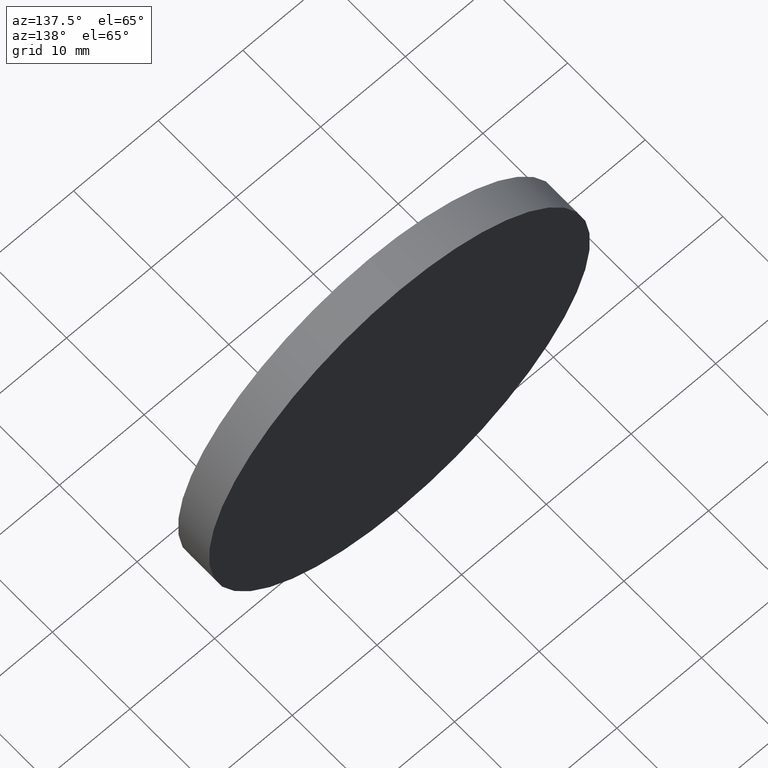
[diagram: clean part render]
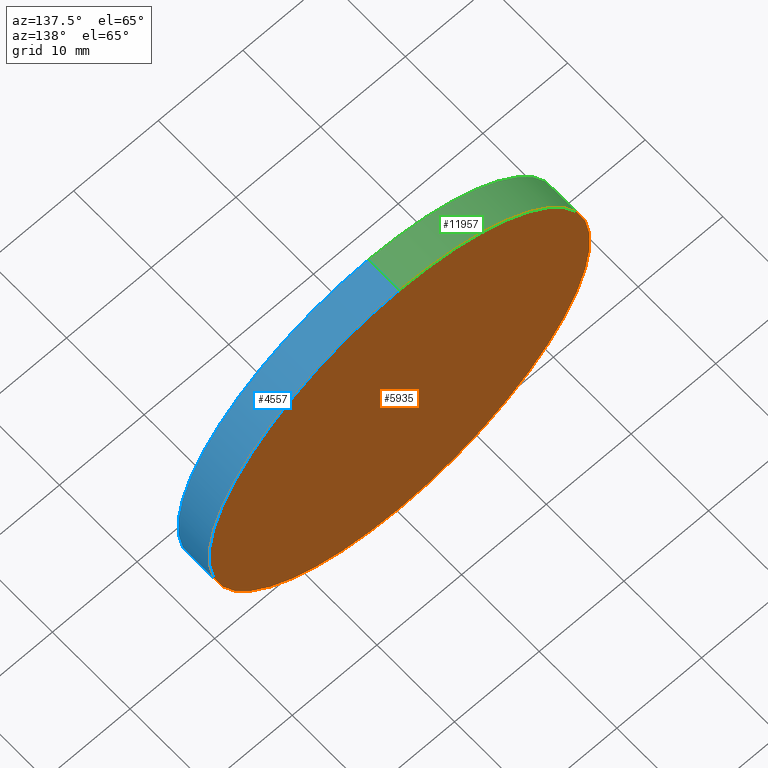
[diagram: same view with three faces highlighted in distinct colors, each labeled with its STEP entity id]
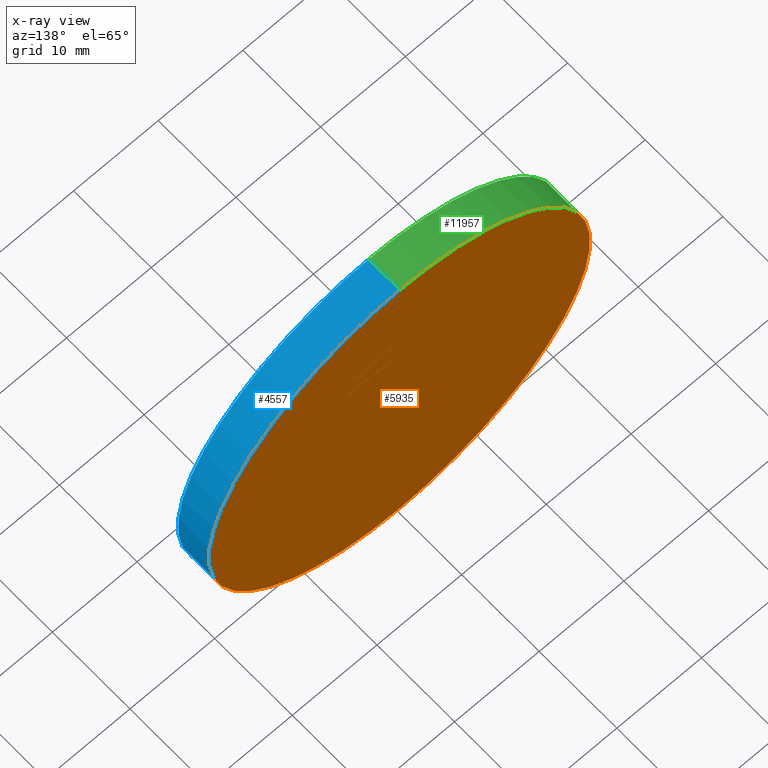
[diagram: x-ray of the same camera — body ghosted, the three highlighted faces saturated]
A machine part, auxiliary view with three faces highlighted in distinct colors.
The next image is the same camera in x-ray (body ghosted, the three faces saturated) — at least one of them is partly hidden behind the body in this view.
Their STEP definitions:

[orange] entity #5935 — the highlighted planar face has unit normal (0, 1, 0).
#1632 = CARTESIAN_POINT ( 'NONE',  ( 0.000000000000000000, 2.000000000000000000, 0.000000000000000000 ) ) ;
#1675 = DIRECTION ( 'NONE',  ( 0.000000000000000000, 0.000000000000000000, 1.000000000000000000 ) ) ;
#1872 = AXIS2_PLACEMENT_3D ( 'NONE', #12766, #10732, #8654 ) ;
#3634 = FACE_OUTER_BOUND ( 'NONE', #10613, .T. ) ;
#4479 = ORIENTED_EDGE ( 'NONE', *, *, #12800, .T. ) ;
#4675 = AXIS2_PLACEMENT_3D ( 'NONE', #5818, #6842, #6753 ) ;
#5818 = CARTESIAN_POINT ( 'NONE',  ( 0.000000000000000000, 2.000000000000000000, 0.000000000000000000 ) ) ;
#5935 = ADVANCED_FACE ( 'NONE', ( #3634 ), #12799, .T. ) ;
#6640 = ORIENTED_EDGE ( 'NONE', *, *, #10128, .T. ) ;
#6726 = CIRCLE ( 'NONE', #9771, 22.50000000000000355 ) ;
#6753 = DIRECTION ( 'NONE',  ( 0.000000000000000000, -0.000000000000000000, 1.000000000000000000 ) ) ;
#6842 = DIRECTION ( 'NONE',  ( 0.000000000000000000, 1.000000000000000000, 0.000000000000000000 ) ) ;
#6894 = VERTEX_POINT ( 'NONE', #8469 ) ;
#8469 = CARTESIAN_POINT ( 'NONE',  ( 2.755455298081545172E-15, 2.000000000000000000, 22.50000000000000355 ) ) ;
#8654 = DIRECTION ( 'NONE',  ( 0.000000000000000000, 0.000000000000000000, 1.000000000000000000 ) ) ;
#9745 = DIRECTION ( 'NONE',  ( 0.000000000000000000, 1.000000000000000000, 0.000000000000000000 ) ) ;
#9771 = AXIS2_PLACEMENT_3D ( 'NONE', #1632, #9745, #1675 ) ;
#10128 = EDGE_CURVE ( 'NONE', #6894, #11755, #6726, .T. ) ;
#10613 = EDGE_LOOP ( 'NONE', ( #4479, #6640 ) ) ;
#10732 = DIRECTION ( 'NONE',  ( 0.000000000000000000, 1.000000000000000000, 0.000000000000000000 ) ) ;
#11755 = VERTEX_POINT ( 'NONE', #12398 ) ;
#12398 = CARTESIAN_POINT ( 'NONE',  ( 0.000000000000000000, 2.000000000000000000, -22.50000000000000355 ) ) ;
#12766 = CARTESIAN_POINT ( 'NONE',  ( 0.000000000000000000, 2.000000000000000000, 0.000000000000000000 ) ) ;
#12799 = PLANE ( 'NONE',  #4675 ) ;
#12800 = EDGE_CURVE ( 'NONE', #11755, #6894, #13018, .T. ) ;
#13018 = CIRCLE ( 'NONE', #1872, 22.50000000000000355 ) ;

[blue] entity #4557 — the highlighted cylindrical surface (partial cylindrical patch) has radius 22.5 mm, axis along (-0, -1, -0).
#343 = EDGE_CURVE ( 'NONE', #6894, #1967, #2129, .T. ) ;
#1030 = DIRECTION ( 'NONE',  ( 0.000000000000000000, 1.000000000000000000, 0.000000000000000000 ) ) ;
#1632 = CARTESIAN_POINT ( 'NONE',  ( 0.000000000000000000, 2.000000000000000000, 0.000000000000000000 ) ) ;
#1675 = DIRECTION ( 'NONE',  ( 0.000000000000000000, 0.000000000000000000, 1.000000000000000000 ) ) ;
#1749 = ORIENTED_EDGE ( 'NONE', *, *, #8189, .F. ) ;
#1967 = VERTEX_POINT ( 'NONE', #9440 ) ;
#2129 = LINE ( 'NONE', #5009, #9815 ) ;
#2864 = EDGE_LOOP ( 'NONE', ( #8420, #2918, #7755, #1749 ) ) ;
#2918 = ORIENTED_EDGE ( 'NONE', *, *, #343, .T. ) ;
#3469 = EDGE_CURVE ( 'NONE', #1967, #12375, #9013, .T. ) ;
#3710 = CARTESIAN_POINT ( 'NONE',  ( 0.000000000000000000, 2.000000000000000000, -22.50000000000000355 ) ) ;
#3796 = FACE_OUTER_BOUND ( 'NONE', #2864, .T. ) ;
#3903 = VECTOR ( 'NONE', #10757, 1000.000000000000000 ) ;
#4557 = ADVANCED_FACE ( 'NONE', ( #3796 ), #11850, .T. ) ;
#5009 = CARTESIAN_POINT ( 'NONE',  ( 2.755455298081545172E-15, 2.000000000000000000, 22.50000000000000355 ) ) ;
#5680 = CARTESIAN_POINT ( 'NONE',  ( 0.000000000000000000, -2.000000000000000000, -22.50000000000000355 ) ) ;
#6726 = CIRCLE ( 'NONE', #9771, 22.50000000000000355 ) ;
#6894 = VERTEX_POINT ( 'NONE', #8469 ) ;
#6967 = DIRECTION ( 'NONE',  ( -0.000000000000000000, -1.000000000000000000, -0.000000000000000000 ) ) ;
#7045 = CARTESIAN_POINT ( 'NONE',  ( 0.000000000000000000, -2.000000000000000000, 0.000000000000000000 ) ) ;
#7755 = ORIENTED_EDGE ( 'NONE', *, *, #3469, .T. ) ;
#7864 = AXIS2_PLACEMENT_3D ( 'NONE', #10172, #6967, #12174 ) ;
#8046 = DIRECTION ( 'NONE',  ( 0.000000000000000000, 0.000000000000000000, 1.000000000000000000 ) ) ;
#8189 = EDGE_CURVE ( 'NONE', #11755, #12375, #12593, .T. ) ;
#8420 = ORIENTED_EDGE ( 'NONE', *, *, #10128, .F. ) ;
#8469 = CARTESIAN_POINT ( 'NONE',  ( 2.755455298081545172E-15, 2.000000000000000000, 22.50000000000000355 ) ) ;
#9013 = CIRCLE ( 'NONE', #10414, 22.50000000000000355 ) ;
#9090 = DIRECTION ( 'NONE',  ( -0.000000000000000000, -1.000000000000000000, -0.000000000000000000 ) ) ;
#9440 = CARTESIAN_POINT ( 'NONE',  ( 2.755455298081545172E-15, -2.000000000000000000, 22.50000000000000355 ) ) ;
#9745 = DIRECTION ( 'NONE',  ( 0.000000000000000000, 1.000000000000000000, 0.000000000000000000 ) ) ;
#9771 = AXIS2_PLACEMENT_3D ( 'NONE', #1632, #9745, #1675 ) ;
#9815 = VECTOR ( 'NONE', #9090, 1000.000000000000000 ) ;
#10128 = EDGE_CURVE ( 'NONE', #6894, #11755, #6726, .T. ) ;
#10172 = CARTESIAN_POINT ( 'NONE',  ( 0.000000000000000000, 2.000000000000000000, 0.000000000000000000 ) ) ;
#10414 = AXIS2_PLACEMENT_3D ( 'NONE', #7045, #1030, #8046 ) ;
#10757 = DIRECTION ( 'NONE',  ( -0.000000000000000000, -1.000000000000000000, -0.000000000000000000 ) ) ;
#11755 = VERTEX_POINT ( 'NONE', #12398 ) ;
#11850 = CYLINDRICAL_SURFACE ( 'NONE', #7864, 22.50000000000000355 ) ;
#12174 = DIRECTION ( 'NONE',  ( 0.000000000000000000, 0.000000000000000000, -1.000000000000000000 ) ) ;
#12375 = VERTEX_POINT ( 'NONE', #5680 ) ;
#12398 = CARTESIAN_POINT ( 'NONE',  ( 0.000000000000000000, 2.000000000000000000, -22.50000000000000355 ) ) ;
#12593 = LINE ( 'NONE', #3710, #3903 ) ;

[green] entity #11957 — the highlighted cylindrical surface (partial cylindrical patch) has radius 22.5 mm, axis along (-0, -1, -0).
#343 = EDGE_CURVE ( 'NONE', #6894, #1967, #2129, .T. ) ;
#679 = DIRECTION ( 'NONE',  ( -0.000000000000000000, -1.000000000000000000, -0.000000000000000000 ) ) ;
#1872 = AXIS2_PLACEMENT_3D ( 'NONE', #12766, #10732, #8654 ) ;
#1967 = VERTEX_POINT ( 'NONE', #9440 ) ;
#2129 = LINE ( 'NONE', #5009, #9815 ) ;
#2172 = AXIS2_PLACEMENT_3D ( 'NONE', #4134, #6033, #3147 ) ;
#2778 = DIRECTION ( 'NONE',  ( 0.000000000000000000, 0.000000000000000000, -1.000000000000000000 ) ) ;
#2792 = EDGE_LOOP ( 'NONE', ( #3039, #12380, #5013, #6604 ) ) ;
#3039 = ORIENTED_EDGE ( 'NONE', *, *, #343, .F. ) ;
#3147 = DIRECTION ( 'NONE',  ( 0.000000000000000000, 0.000000000000000000, 1.000000000000000000 ) ) ;
#3710 = CARTESIAN_POINT ( 'NONE',  ( 0.000000000000000000, 2.000000000000000000, -22.50000000000000355 ) ) ;
#3903 = VECTOR ( 'NONE', #10757, 1000.000000000000000 ) ;
#4134 = CARTESIAN_POINT ( 'NONE',  ( 0.000000000000000000, -2.000000000000000000, 0.000000000000000000 ) ) ;
#5009 = CARTESIAN_POINT ( 'NONE',  ( 2.755455298081545172E-15, 2.000000000000000000, 22.50000000000000355 ) ) ;
#5013 = ORIENTED_EDGE ( 'NONE', *, *, #8189, .T. ) ;
#5680 = CARTESIAN_POINT ( 'NONE',  ( 0.000000000000000000, -2.000000000000000000, -22.50000000000000355 ) ) ;
#6033 = DIRECTION ( 'NONE',  ( 0.000000000000000000, 1.000000000000000000, 0.000000000000000000 ) ) ;
#6130 = CIRCLE ( 'NONE', #2172, 22.50000000000000355 ) ;
#6604 = ORIENTED_EDGE ( 'NONE', *, *, #7246, .T. ) ;
#6894 = VERTEX_POINT ( 'NONE', #8469 ) ;
#7246 = EDGE_CURVE ( 'NONE', #12375, #1967, #6130, .T. ) ;
#8189 = EDGE_CURVE ( 'NONE', #11755, #12375, #12593, .T. ) ;
#8469 = CARTESIAN_POINT ( 'NONE',  ( 2.755455298081545172E-15, 2.000000000000000000, 22.50000000000000355 ) ) ;
#8654 = DIRECTION ( 'NONE',  ( 0.000000000000000000, 0.000000000000000000, 1.000000000000000000 ) ) ;
#9090 = DIRECTION ( 'NONE',  ( -0.000000000000000000, -1.000000000000000000, -0.000000000000000000 ) ) ;
#9440 = CARTESIAN_POINT ( 'NONE',  ( 2.755455298081545172E-15, -2.000000000000000000, 22.50000000000000355 ) ) ;
#9815 = VECTOR ( 'NONE', #9090, 1000.000000000000000 ) ;
#10732 = DIRECTION ( 'NONE',  ( 0.000000000000000000, 1.000000000000000000, 0.000000000000000000 ) ) ;
#10757 = DIRECTION ( 'NONE',  ( -0.000000000000000000, -1.000000000000000000, -0.000000000000000000 ) ) ;
#10827 = CARTESIAN_POINT ( 'NONE',  ( 0.000000000000000000, 2.000000000000000000, 0.000000000000000000 ) ) ;
#11468 = CYLINDRICAL_SURFACE ( 'NONE', #11818, 22.50000000000000355 ) ;
#11755 = VERTEX_POINT ( 'NONE', #12398 ) ;
#11818 = AXIS2_PLACEMENT_3D ( 'NONE', #10827, #679, #2778 ) ;
#11930 = FACE_OUTER_BOUND ( 'NONE', #2792, .T. ) ;
#11957 = ADVANCED_FACE ( 'NONE', ( #11930 ), #11468, .T. ) ;
#12375 = VERTEX_POINT ( 'NONE', #5680 ) ;
#12380 = ORIENTED_EDGE ( 'NONE', *, *, #12800, .F. ) ;
#12398 = CARTESIAN_POINT ( 'NONE',  ( 0.000000000000000000, 2.000000000000000000, -22.50000000000000355 ) ) ;
#12593 = LINE ( 'NONE', #3710, #3903 ) ;
#12766 = CARTESIAN_POINT ( 'NONE',  ( 0.000000000000000000, 2.000000000000000000, 0.000000000000000000 ) ) ;
#12800 = EDGE_CURVE ( 'NONE', #11755, #6894, #13018, .T. ) ;
#13018 = CIRCLE ( 'NONE', #1872, 22.50000000000000355 ) ;